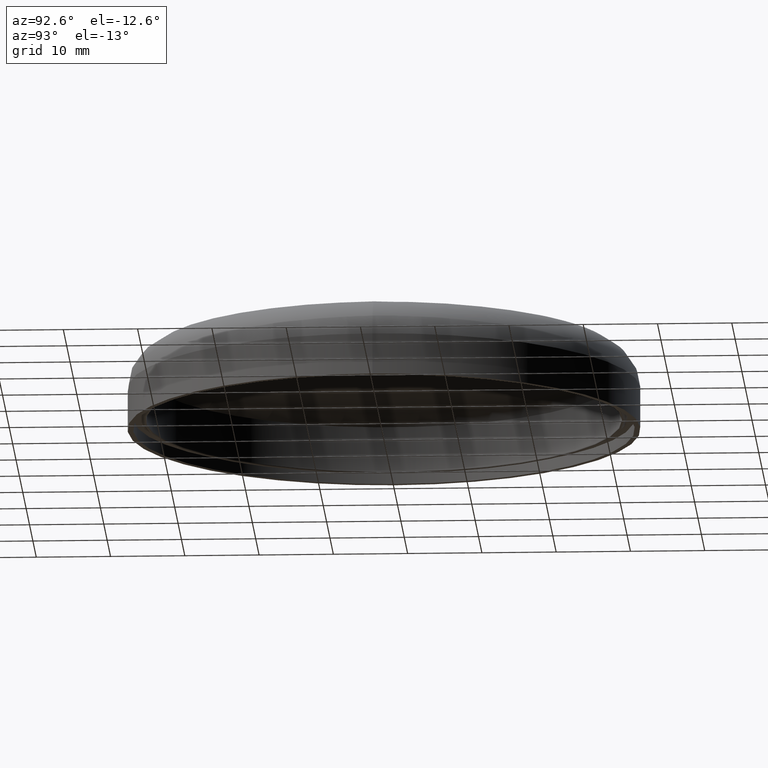
[diagram: clean part render]
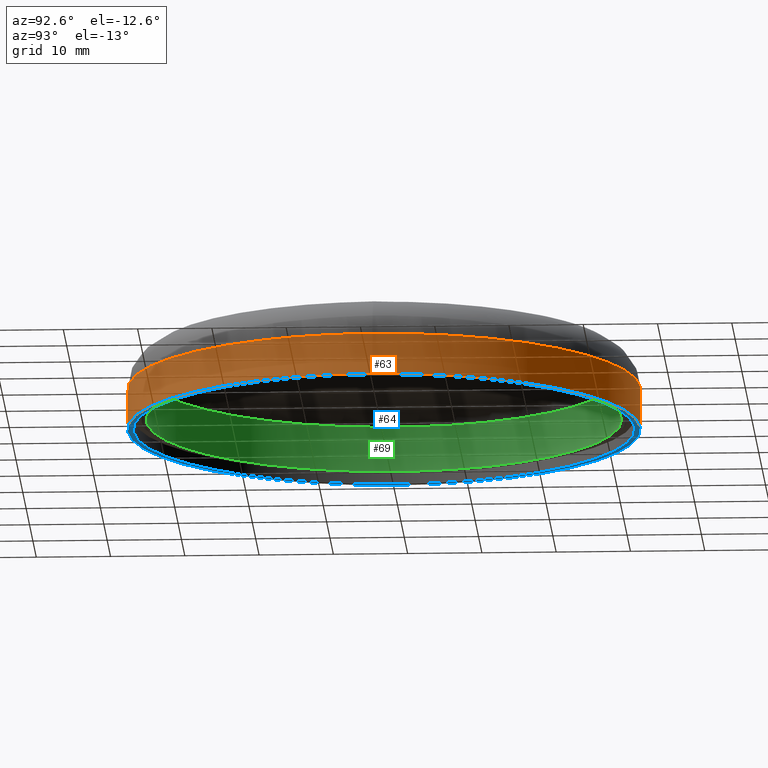
[diagram: same view with three faces highlighted in distinct colors, each labeled with its STEP entity id]
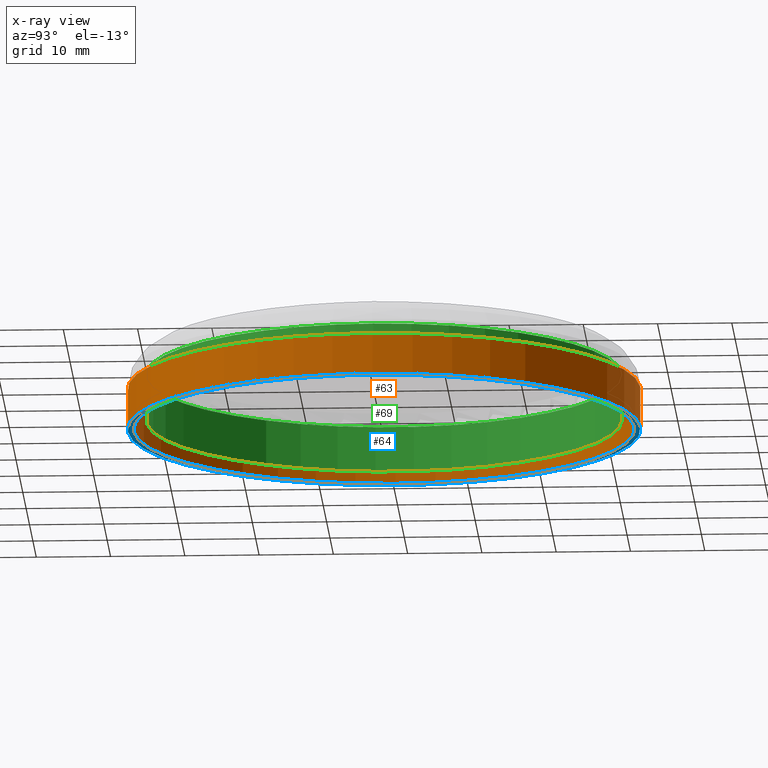
[diagram: x-ray of the same camera — body ghosted, the three highlighted faces saturated]
A machine part, auxiliary view with three faces highlighted in distinct colors.
The next image is the same camera in x-ray (body ghosted, the three faces saturated) — at least one of them is partly hidden behind the body in this view.
Their STEP definitions:

[orange] entity #63 — the highlighted cylindrical surface (bore or boss wall) has radius 34.5 mm, axis along (0, 0, 1).
#37=CYLINDRICAL_SURFACE('',#152,34.5);
#45=FACE_BOUND('',#79,.T.);
#46=FACE_BOUND('',#80,.T.);
#63=ADVANCED_FACE('',(#45,#46),#37,.T.);
#79=EDGE_LOOP('',(#99));
#80=EDGE_LOOP('',(#100));
#99=ORIENTED_EDGE('',*,*,#127,.F.);
#100=ORIENTED_EDGE('',*,*,#128,.T.);
#117=VERTEX_POINT('',#217);
#118=VERTEX_POINT('',#220);
#127=EDGE_CURVE('',#117,#117,#137,.T.);
#128=EDGE_CURVE('',#118,#118,#138,.T.);
#137=CIRCLE('',#149,34.5);
#138=CIRCLE('',#151,34.5);
#149=AXIS2_PLACEMENT_3D('',#216,#174,#175);
#151=AXIS2_PLACEMENT_3D('',#219,#178,#179);
#152=AXIS2_PLACEMENT_3D('',#221,#180,#181);
#174=DIRECTION('',(0.,0.,1.));
#175=DIRECTION('',(1.,0.,0.));
#178=DIRECTION('',(0.,0.,1.));
#179=DIRECTION('',(1.,0.,0.));
#180=DIRECTION('',(0.,0.,1.));
#181=DIRECTION('',(1.,0.,0.));
#216=CARTESIAN_POINT('',(0.,0.,5.52825809610859));
#217=CARTESIAN_POINT('',(34.5,0.,5.52825809610859));
#219=CARTESIAN_POINT('',(0.,0.,-4.92890681491531E-014));
#220=CARTESIAN_POINT('',(34.5,0.,-4.92890681491531E-014));
#221=CARTESIAN_POINT('',(0.,0.,0.));

[blue] entity #64 — the highlighted planar face has unit normal (0, 0, 1).
#35=PLANE('',#154);
#47=FACE_BOUND('',#81,.T.);
#48=FACE_BOUND('',#82,.T.);
#64=ADVANCED_FACE('',(#47,#48),#35,.F.);
#81=EDGE_LOOP('',(#101));
#82=EDGE_LOOP('',(#102));
#101=ORIENTED_EDGE('',*,*,#128,.F.);
#102=ORIENTED_EDGE('',*,*,#129,.T.);
#118=VERTEX_POINT('',#220);
#119=VERTEX_POINT('',#223);
#128=EDGE_CURVE('',#118,#118,#138,.T.);
#129=EDGE_CURVE('',#119,#119,#139,.T.);
#138=CIRCLE('',#151,34.5);
#139=CIRCLE('',#153,33.75);
#151=AXIS2_PLACEMENT_3D('',#219,#178,#179);
#153=AXIS2_PLACEMENT_3D('',#222,#182,#183);
#154=AXIS2_PLACEMENT_3D('',#224,#184,#185);
#178=DIRECTION('',(0.,0.,1.));
#179=DIRECTION('',(1.,0.,0.));
#182=DIRECTION('',(0.,0.,1.));
#183=DIRECTION('',(1.,0.,0.));
#184=DIRECTION('',(0.,0.,1.));
#185=DIRECTION('',(1.,0.,0.));
#219=CARTESIAN_POINT('',(0.,0.,-4.92890681491531E-014));
#220=CARTESIAN_POINT('',(34.5,0.,-4.92890681491531E-014));
#222=CARTESIAN_POINT('',(0.,0.,0.));
#223=CARTESIAN_POINT('',(33.75,0.,0.));
#224=CARTESIAN_POINT('',(0.,-33.75,-2.46445340745765E-014));

[green] entity #69 — the highlighted cylindrical surface (bore or boss wall) has radius 32 mm, axis along (0, 0, 1).
#39=CYLINDRICAL_SURFACE('',#164,32.);
#57=FACE_BOUND('',#91,.T.);
#58=FACE_BOUND('',#92,.T.);
#69=ADVANCED_FACE('',(#57,#58),#39,.F.);
#91=EDGE_LOOP('',(#111));
#92=EDGE_LOOP('',(#112));
#111=ORIENTED_EDGE('',*,*,#133,.F.);
#112=ORIENTED_EDGE('',*,*,#134,.T.);
#123=VERTEX_POINT('',#235);
#124=VERTEX_POINT('',#238);
#133=EDGE_CURVE('',#123,#123,#143,.T.);
#134=EDGE_CURVE('',#124,#124,#144,.T.);
#143=CIRCLE('',#161,32.);
#144=CIRCLE('',#163,32.);
#161=AXIS2_PLACEMENT_3D('',#234,#198,#199);
#163=AXIS2_PLACEMENT_3D('',#237,#202,#203);
#164=AXIS2_PLACEMENT_3D('',#239,#204,#205);
#198=DIRECTION('',(0.,0.,1.));
#199=DIRECTION('',(1.,0.,0.));
#202=DIRECTION('',(0.,0.,1.));
#203=DIRECTION('',(1.,0.,0.));
#204=DIRECTION('',(0.,0.,1.));
#205=DIRECTION('',(1.,0.,0.));
#234=CARTESIAN_POINT('',(0.,0.,1.33284271247461));
#235=CARTESIAN_POINT('',(32.,0.,1.33284271247461));
#237=CARTESIAN_POINT('',(0.,0.,7.4357053033965));
#238=CARTESIAN_POINT('',(32.,0.,7.4357053033965));
#239=CARTESIAN_POINT('',(0.,0.,0.));